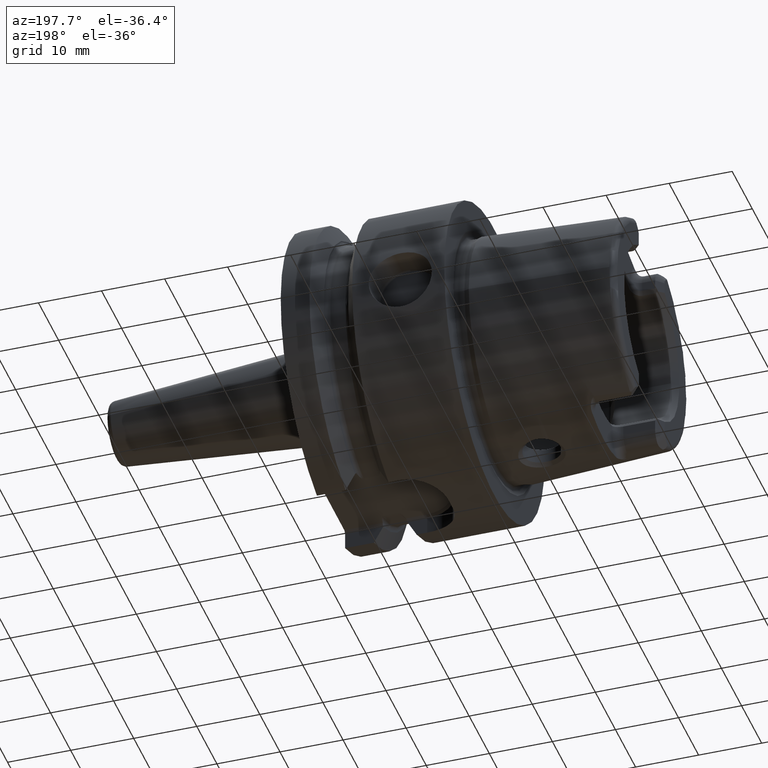
[diagram: clean part render]
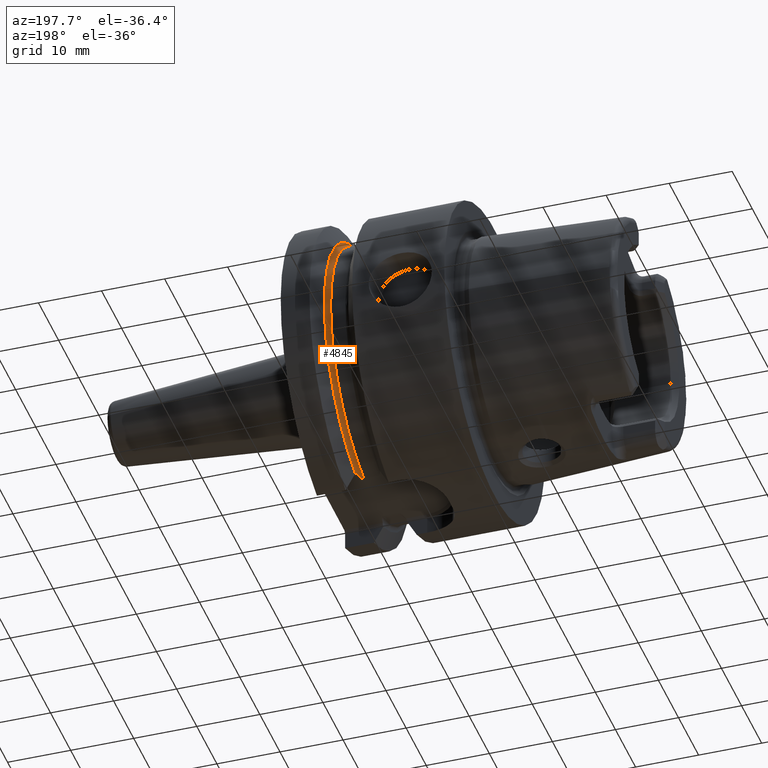
[diagram: same view with one face highlighted and labeled with its STEP entity id]
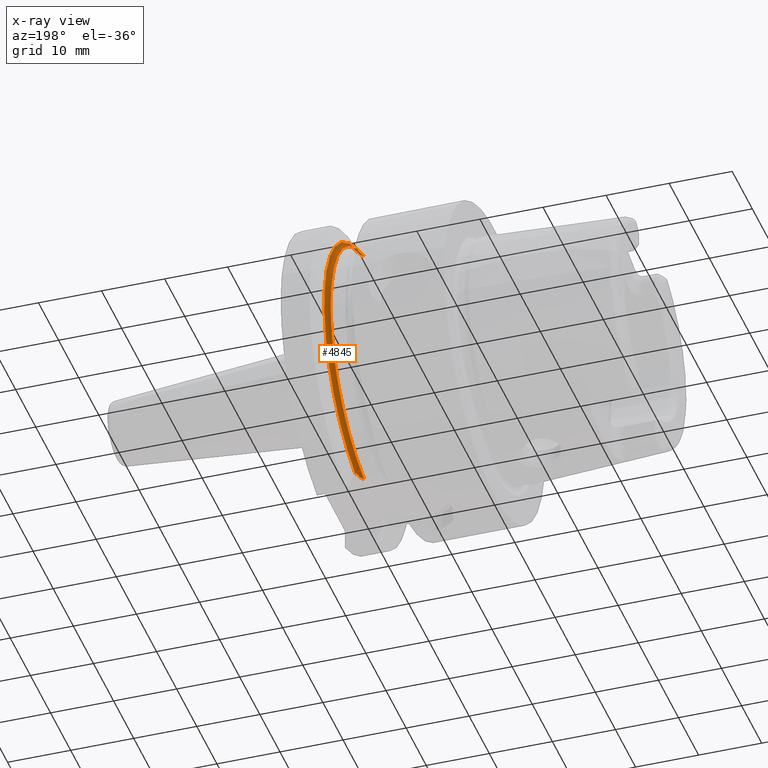
[diagram: x-ray of the same camera — body ghosted, the highlighted face saturated]
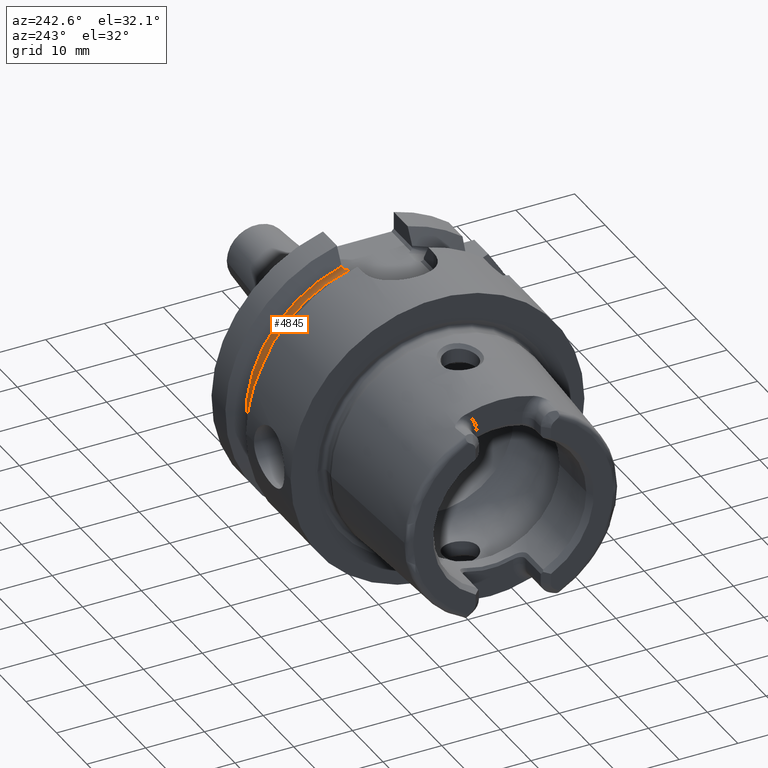
[diagram: same view with one face highlighted and labeled with its STEP entity id]
A machine part, auxiliary view. The second image highlights one B-rep face of the part: STEP entity #4845.
The next image is the same camera in x-ray: the body ghosted, the highlighted face saturated — about 1% of this face is hidden behind the body in this view.
A second angle (auxiliary view) of the same face is appended — the face is thin or edge-on in the first view.
In plain terms, the highlighted toroidal blend (fillet) surface has major radius 22.225 mm and minor (blend) radius 0.75 mm.
Its self-contained STEP definition (entity closure, byte-faithful):
#1345=CARTESIAN_POINT('',(1.91625E1,4.936154880066E0,-2.09E1));
#1346=CARTESIAN_POINT('',(1.918665467019E1,4.936154880066E0,-2.09E1));
#1347=CARTESIAN_POINT('',(1.923332994473E1,4.946110970950E0,-2.09E1));
#1348=CARTESIAN_POINT('',(1.930011591954E1,4.987363827586E0,-2.09E1));
#1349=CARTESIAN_POINT('',(1.935887911623E1,5.045587941002E0,-2.09E1));
#1350=CARTESIAN_POINT('',(1.941409238306E1,5.118852703346E0,-2.09E1));
#1351=CARTESIAN_POINT('',(1.946686951149E1,5.206868186285E0,-2.09E1));
#1352=CARTESIAN_POINT('',(1.951654929273E1,5.306591079075E0,-2.09E1));
#1353=CARTESIAN_POINT('',(1.956328216778E1,5.416157301983E0,-2.09E1));
#1354=CARTESIAN_POINT('',(1.960894126842E1,5.539258725452E0,-2.09E1));
#1355=CARTESIAN_POINT('',(1.965389165734E1,5.677919230316E0,-2.09E1));
#1356=CARTESIAN_POINT('',(1.969822164317E1,5.834375899493E0,-2.09E1));
#1357=CARTESIAN_POINT('',(1.974113045025E1,6.008640625694E0,-2.09E1));
#1358=CARTESIAN_POINT('',(1.978136032274E1,6.198390319559E0,-2.09E1));
#1359=CARTESIAN_POINT('',(1.981792011132E1,6.401808965172E0,-2.09E1));
#1360=CARTESIAN_POINT('',(1.983911091140E1,6.544318876890E0,-2.09E1));
#1361=CARTESIAN_POINT('',(1.984884311231E1,6.6175E0,-2.09E1));
#1373=CARTESIAN_POINT('',(1.984884311231E1,6.6175E0,-2.09E1));
#1374=CARTESIAN_POINT('',(1.986271686893E1,6.642588058350E0,-2.092508805835E1));
#1375=CARTESIAN_POINT('',(1.988598825176E1,6.693851740695E0,-2.097635174069E1));
#1376=CARTESIAN_POINT('',(1.990766081344E1,6.775204734806E0,-2.105770473481E1));
#1377=CARTESIAN_POINT('',(1.99125E1,6.830132404148E0,-2.111263240415E1));
#1378=CARTESIAN_POINT('',(1.99125E1,6.857959296867E0,-2.114045929687E1));
#1453=CARTESIAN_POINT('',(1.99125E1,6.0175E0,2.139486664483E1));
#1454=CARTESIAN_POINT('',(1.99125E1,6.0175E0,2.137900126109E1));
#1455=CARTESIAN_POINT('',(1.991156783700E1,6.0175E0,2.134732482799E1));
#1456=CARTESIAN_POINT('',(1.990878098071E1,6.0175E0,2.131575671507E1));
#1457=CARTESIAN_POINT('',(1.990692110799E1,6.0175E0,2.13E1));
#1487=CARTESIAN_POINT('',(1.990692110799E1,6.0175E0,2.13E1));
#1488=CARTESIAN_POINT('',(1.990121110100E1,5.979781210365E0,2.126228121037E1));
#1489=CARTESIAN_POINT('',(1.988136528733E1,5.905872725888E0,2.118837272589E1));
#1490=CARTESIAN_POINT('',(1.982455151269E1,5.797379195260E0,2.107987919526E1));
#1491=CARTESIAN_POINT('',(1.974138057679E1,5.698254483474E0,2.098075448347E1));
#1492=CARTESIAN_POINT('',(1.967239750387E1,5.642812871548E0,2.092531287155E1));
#1493=CARTESIAN_POINT('',(1.963403514727E1,5.6175E0,2.09E1));
#1512=CARTESIAN_POINT('',(1.963403514727E1,5.6175E0,2.09E1));
#1513=CARTESIAN_POINT('',(1.962121105487E1,5.577555933860E0,2.09E1));
#1514=CARTESIAN_POINT('',(1.959433966091E1,5.498305669547E0,2.09E1));
#1515=CARTESIAN_POINT('',(1.954802760583E1,5.378400607294E0,2.09E1));
#1516=CARTESIAN_POINT('',(1.949825271637E1,5.267721187528E0,2.09E1));
#1517=CARTESIAN_POINT('',(1.944679938215E1,5.171347555465E0,2.09E1));
#1518=CARTESIAN_POINT('',(1.939476256373E1,5.091349730416E0,2.09E1));
#1519=CARTESIAN_POINT('',(1.934209978086E1,5.027407982916E0,2.09E1));
#1520=CARTESIAN_POINT('',(1.928722183018E1,4.978138118530E0,2.09E1));
#1521=CARTESIAN_POINT('',(1.922686285427E1,4.944417861259E0,2.09E1));
#1522=CARTESIAN_POINT('',(1.918440943347E1,4.936154880066E0,2.09E1));
#1523=CARTESIAN_POINT('',(1.91625E1,4.936154880066E0,2.09E1));
#1582=CARTESIAN_POINT('',(1.91625E1,0.E0,0.E0));
#1583=DIRECTION('',(-1.E0,0.E0,0.E0));
#1584=DIRECTION('',(0.E0,2.298558733442E-1,9.732246798603E-1));
#1585=AXIS2_PLACEMENT_3D('',#1582,#1583,#1584);
#1587=CARTESIAN_POINT('',(1.99125E1,0.E0,0.E0));
#1588=DIRECTION('',(1.E0,0.E0,0.E0));
#1589=DIRECTION('',(0.E0,3.085695971594E-1,-9.512017681380E-1));
#1590=AXIS2_PLACEMENT_3D('',#1587,#1588,#1589);
#2923=VERTEX_POINT('',#1453);
#2924=VERTEX_POINT('',#1457);
#2971=CARTESIAN_POINT('',(1.91625E1,4.936154880066E0,2.09E1));
#2972=CARTESIAN_POINT('',(1.91625E1,4.936154880066E0,-2.09E1));
#2973=VERTEX_POINT('',#2971);
#2974=VERTEX_POINT('',#2972);
#2975=CARTESIAN_POINT('',(1.99125E1,6.857959296867E0,-2.114045929687E1));
#2976=VERTEX_POINT('',#2975);
#2979=VERTEX_POINT('',#1512);
#2984=VERTEX_POINT('',#1361);
#4831=CARTESIAN_POINT('',(1.91625E1,0.E0,0.E0));
#4832=DIRECTION('',(1.E0,0.E0,0.E0));
#4833=DIRECTION('',(0.E0,-1.E0,0.E0));
#4834=AXIS2_PLACEMENT_3D('',#4831,#4832,#4833);
#4835=TOROIDAL_SURFACE('',#4834,2.2225E1,7.5E-1);
#4836=ORIENTED_EDGE('',*,*,#4563,.T.);
#4837=ORIENTED_EDGE('',*,*,#4611,.T.);
#4838=ORIENTED_EDGE('',*,*,#4637,.T.);
#4839=ORIENTED_EDGE('',*,*,#4393,.T.);
#4840=ORIENTED_EDGE('',*,*,#4740,.T.);
#4841=ORIENTED_EDGE('',*,*,#4771,.T.);
#4842=ORIENTED_EDGE('',*,*,#4788,.T.);
#4843=EDGE_LOOP('',(#4836,#4837,#4838,#4839,#4840,#4841,#4842));
#4844=FACE_OUTER_BOUND('',#4843,.F.);
#4845=ADVANCED_FACE('',(#4844),#4835,.F.);
#1362=B_SPLINE_CURVE_WITH_KNOTS('',3,(#1345,#1346,#1347,#1348,#1349,#1350,#1351,
#1352,#1353,#1354,#1355,#1356,#1357,#1358,#1359,#1360,#1361),.UNSPECIFIED.,.F.,
.F.,(4,1,1,1,1,1,1,1,1,1,1,1,1,1,4),(0.E0,7.142857142857E-2,1.428571428571E-1,
2.142857142857E-1,2.857142857143E-1,3.571428571429E-1,4.285714285714E-1,5.E-1,
5.714285714286E-1,6.428571428571E-1,7.142857142857E-1,7.857142857143E-1,
8.571428571429E-1,9.285714285714E-1,1.E0),.UNSPECIFIED.);
#1379=B_SPLINE_CURVE_WITH_KNOTS('',3,(#1373,#1374,#1375,#1376,#1377,#1378),
.UNSPECIFIED.,.F.,.F.,(4,1,1,4),(0.E0,3.333333333333E-1,6.666666666667E-1,1.E0),
.UNSPECIFIED.);
#1458=B_SPLINE_CURVE_WITH_KNOTS('',3,(#1453,#1454,#1455,#1456,#1457),
.UNSPECIFIED.,.F.,.F.,(4,1,4),(0.E0,5.E-1,1.E0),.UNSPECIFIED.);
#1494=B_SPLINE_CURVE_WITH_KNOTS('',3,(#1487,#1488,#1489,#1490,#1491,#1492,
#1493),.UNSPECIFIED.,.F.,.F.,(4,1,1,1,4),(0.E0,2.5E-1,5.E-1,7.5E-1,1.E0),
.UNSPECIFIED.);
#1524=B_SPLINE_CURVE_WITH_KNOTS('',3,(#1512,#1513,#1514,#1515,#1516,#1517,#1518,
#1519,#1520,#1521,#1522,#1523),.UNSPECIFIED.,.F.,.F.,(4,1,1,1,1,1,1,1,1,4),
(0.E0,1.111111111111E-1,2.222222222222E-1,3.333333333333E-1,4.444444444444E-1,
5.555555555556E-1,6.666666666667E-1,7.777777777778E-1,8.888888888889E-1,1.E0),
.UNSPECIFIED.);
#1586=CIRCLE('',#1585,2.1475E1);
#1591=CIRCLE('',#1590,2.2225E1);
#4393=EDGE_CURVE('',#2976,#2923,#1591,.T.);
#4563=EDGE_CURVE('',#2973,#2974,#1586,.T.);
#4611=EDGE_CURVE('',#2974,#2984,#1362,.T.);
#4637=EDGE_CURVE('',#2984,#2976,#1379,.T.);
#4740=EDGE_CURVE('',#2923,#2924,#1458,.T.);
#4771=EDGE_CURVE('',#2924,#2979,#1494,.T.);
#4788=EDGE_CURVE('',#2979,#2973,#1524,.T.);